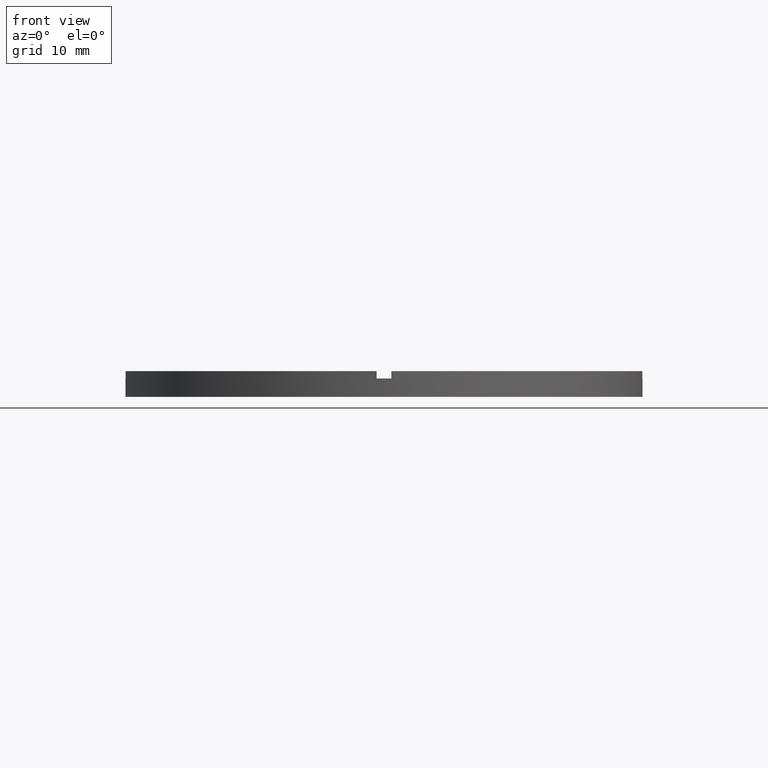
[diagram: clean part render]
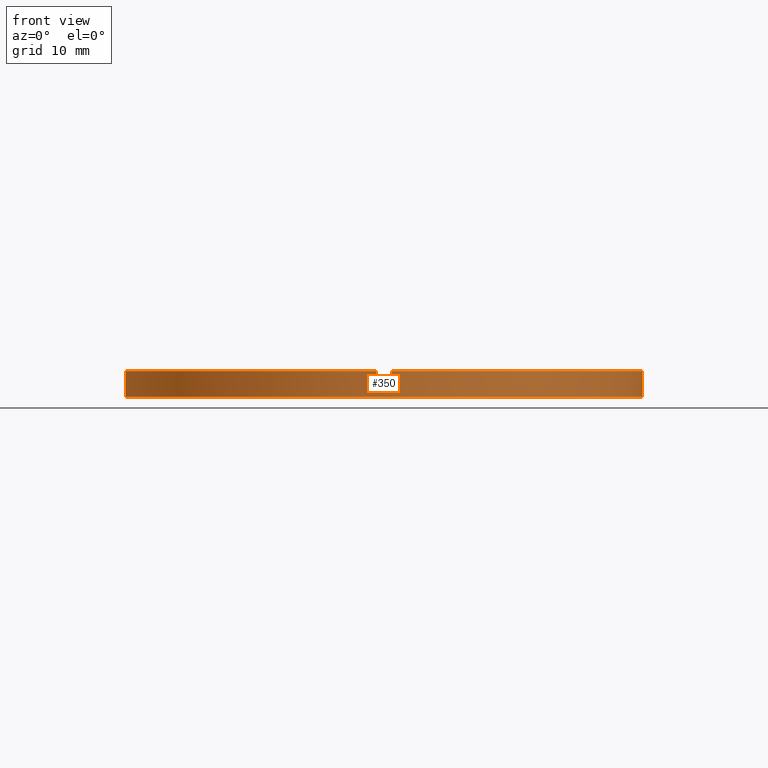
[diagram: same view with one face highlighted and labeled with its STEP entity id]
A machine part, front view. The second image highlights one B-rep face of the part: STEP entity #350.
In plain terms, the highlighted cylindrical surface (partial cylindrical patch) has radius 35 mm, axis along (-0, -0, -1).
Its self-contained STEP definition (entity closure, byte-faithful):
#10 = VERTEX_POINT ( 'NONE', #442 ) ;
#26 = CARTESIAN_POINT ( 'NONE',  ( 34.98571136907180090, -1.000000000000157874, 2.500000000000000000 ) ) ;
#34 = DIRECTION ( 'NONE',  ( 0.000000000000000000, 0.000000000000000000, 1.000000000000000000 ) ) ;
#38 = DIRECTION ( 'NONE',  ( -1.000000000000000000, 0.000000000000000000, 0.000000000000000000 ) ) ;
#39 = CIRCLE ( 'NONE', #404, 35.00000000000000711 ) ;
#53 = CARTESIAN_POINT ( 'NONE',  ( 35.00000000000000711, 4.286263797015737285E-15, 2.500000000000000000 ) ) ;
#57 = EDGE_CURVE ( 'NONE', #703, #676, #690, .T. ) ;
#58 = CARTESIAN_POINT ( 'NONE',  ( 0.000000000000000000, 0.000000000000000000, 0.000000000000000000 ) ) ;
#64 = DIRECTION ( 'NONE',  ( -0.000000000000000000, 0.000000000000000000, 1.000000000000000000 ) ) ;
#69 = DIRECTION ( 'NONE',  ( 0.000000000000000000, 0.000000000000000000, 1.000000000000000000 ) ) ;
#70 = AXIS2_PLACEMENT_3D ( 'NONE', #345, #662, #271 ) ;
#78 = ORIENTED_EDGE ( 'NONE', *, *, #386, .F. ) ;
#82 = DIRECTION ( 'NONE',  ( -0.000000000000000000, -0.000000000000000000, -1.000000000000000000 ) ) ;
#83 = ORIENTED_EDGE ( 'NONE', *, *, #680, .F. ) ;
#92 = ORIENTED_EDGE ( 'NONE', *, *, #325, .T. ) ;
#94 = CARTESIAN_POINT ( 'NONE',  ( -1.000000000000160538, -34.98571136907180090, 3.500000000000000000 ) ) ;
#102 = ORIENTED_EDGE ( 'NONE', *, *, #746, .F. ) ;
#114 = DIRECTION ( 'NONE',  ( 1.000000000000000000, 0.000000000000000000, 0.000000000000000000 ) ) ;
#119 = CARTESIAN_POINT ( 'NONE',  ( -1.000000000000160538, -34.98571136907180090, 3.500000000000000000 ) ) ;
#129 = EDGE_CURVE ( 'NONE', #10, #524, #481, .T. ) ;
#133 = DIRECTION ( 'NONE',  ( 1.000000000000000000, 0.000000000000000000, 0.000000000000000000 ) ) ;
#135 = VERTEX_POINT ( 'NONE', #154 ) ;
#151 = DIRECTION ( 'NONE',  ( -0.000000000000000000, -0.000000000000000000, -1.000000000000000000 ) ) ;
#154 = CARTESIAN_POINT ( 'NONE',  ( -34.98571136907180801, -1.000000000000026645, 3.500000000000000000 ) ) ;
#162 = VERTEX_POINT ( 'NONE', #482 ) ;
#167 = ORIENTED_EDGE ( 'NONE', *, *, #57, .F. ) ;
#171 = VECTOR ( 'NONE', #212, 1000.000000000000000 ) ;
#179 = VERTEX_POINT ( 'NONE', #53 ) ;
#186 = VECTOR ( 'NONE', #151, 1000.000000000000000 ) ;
#190 = VECTOR ( 'NONE', #572, 1000.000000000000000 ) ;
#193 = CARTESIAN_POINT ( 'NONE',  ( 0.000000000000000000, 0.000000000000000000, 2.500000000000000000 ) ) ;
#195 = EDGE_CURVE ( 'NONE', #162, #631, #243, .T. ) ;
#200 = CARTESIAN_POINT ( 'NONE',  ( -35.00000000000000711, 0.000000000000000000, 0.000000000000000000 ) ) ;
#201 = LINE ( 'NONE', #650, #186 ) ;
#212 = DIRECTION ( 'NONE',  ( 0.000000000000000000, 0.000000000000000000, 1.000000000000000000 ) ) ;
#222 = EDGE_CURVE ( 'NONE', #669, #524, #247, .T. ) ;
#233 = CARTESIAN_POINT ( 'NONE',  ( 0.000000000000000000, 0.000000000000000000, 2.500000000000000000 ) ) ;
#243 = LINE ( 'NONE', #720, #512 ) ;
#247 = LINE ( 'NONE', #651, #510 ) ;
#248 = DIRECTION ( 'NONE',  ( -0.000000000000000000, -0.000000000000000000, -1.000000000000000000 ) ) ;
#271 = DIRECTION ( 'NONE',  ( 1.000000000000000000, 0.000000000000000000, 0.000000000000000000 ) ) ;
#279 = AXIS2_PLACEMENT_3D ( 'NONE', #233, #64, #114 ) ;
#282 = VERTEX_POINT ( 'NONE', #94 ) ;
#304 = DIRECTION ( 'NONE',  ( -0.000000000000000000, -0.000000000000000000, -1.000000000000000000 ) ) ;
#306 = DIRECTION ( 'NONE',  ( 1.000000000000000000, 0.000000000000000000, 0.000000000000000000 ) ) ;
#313 = DIRECTION ( 'NONE',  ( 1.000000000000000000, 0.000000000000000000, 0.000000000000000000 ) ) ;
#317 = CARTESIAN_POINT ( 'NONE',  ( 0.9999999999998395728, -34.98571136907181511, 2.500000000000000000 ) ) ;
#325 = EDGE_CURVE ( 'NONE', #10, #676, #723, .T. ) ;
#326 = CARTESIAN_POINT ( 'NONE',  ( 34.98571136907180090, -1.000000000000157874, 3.500000000000000000 ) ) ;
#336 = DIRECTION ( 'NONE',  ( 0.000000000000000000, 0.000000000000000000, 1.000000000000000000 ) ) ;
#345 = CARTESIAN_POINT ( 'NONE',  ( 0.000000000000000000, 0.000000000000000000, 3.500000000000000000 ) ) ;
#350 = ADVANCED_FACE ( 'NONE', ( #575 ), #578, .T. ) ;
#354 = ORIENTED_EDGE ( 'NONE', *, *, #195, .T. ) ;
#362 = ORIENTED_EDGE ( 'NONE', *, *, #614, .T. ) ;
#366 = VERTEX_POINT ( 'NONE', #466 ) ;
#386 = EDGE_CURVE ( 'NONE', #162, #613, #39, .T. ) ;
#404 = AXIS2_PLACEMENT_3D ( 'NONE', #598, #69, #133 ) ;
#406 = ORIENTED_EDGE ( 'NONE', *, *, #655, .T. ) ;
#424 = ORIENTED_EDGE ( 'NONE', *, *, #129, .F. ) ;
#432 = ORIENTED_EDGE ( 'NONE', *, *, #733, .T. ) ;
#442 = CARTESIAN_POINT ( 'NONE',  ( 0.9999999999998395728, -34.98571136907181511, 3.500000000000000000 ) ) ;
#461 = LINE ( 'NONE', #517, #190 ) ;
#466 = CARTESIAN_POINT ( 'NONE',  ( 35.00000000000000711, 4.286263797015737285E-15, 0.000000000000000000 ) ) ;
#472 = CARTESIAN_POINT ( 'NONE',  ( 0.000000000000000000, 0.000000000000000000, 3.500000000000000000 ) ) ;
#475 = CARTESIAN_POINT ( 'NONE',  ( 0.9999999999998395728, -34.98571136907181511, 3.500000000000000000 ) ) ;
#481 = CIRCLE ( 'NONE', #612, 35.00000000000000711 ) ;
#482 = CARTESIAN_POINT ( 'NONE',  ( -35.00000000000000711, 0.000000000000000000, 2.500000000000000000 ) ) ;
#510 = VECTOR ( 'NONE', #336, 1000.000000000000000 ) ;
#512 = VECTOR ( 'NONE', #82, 1000.000000000000000 ) ;
#516 = AXIS2_PLACEMENT_3D ( 'NONE', #472, #304, #38 ) ;
#517 = CARTESIAN_POINT ( 'NONE',  ( -34.98571136907180801, -1.000000000000026645, 3.500000000000000000 ) ) ;
#524 = VERTEX_POINT ( 'NONE', #326 ) ;
#572 = DIRECTION ( 'NONE',  ( -0.000000000000000000, -0.000000000000000000, -1.000000000000000000 ) ) ;
#575 = FACE_OUTER_BOUND ( 'NONE', #616, .T. ) ;
#578 = CYLINDRICAL_SURFACE ( 'NONE', #516, 35.00000000000000711 ) ;
#598 = CARTESIAN_POINT ( 'NONE',  ( 0.000000000000000000, 0.000000000000000000, 2.500000000000000000 ) ) ;
#600 = AXIS2_PLACEMENT_3D ( 'NONE', #193, #34, #666 ) ;
#605 = CARTESIAN_POINT ( 'NONE',  ( 0.000000000000000000, 0.000000000000000000, 3.500000000000000000 ) ) ;
#608 = EDGE_CURVE ( 'NONE', #179, #366, #201, .T. ) ;
#609 = DIRECTION ( 'NONE',  ( 0.000000000000000000, 0.000000000000000000, 1.000000000000000000 ) ) ;
#612 = AXIS2_PLACEMENT_3D ( 'NONE', #605, #711, #313 ) ;
#613 = VERTEX_POINT ( 'NONE', #684 ) ;
#614 = EDGE_CURVE ( 'NONE', #135, #613, #461, .T. ) ;
#615 = ORIENTED_EDGE ( 'NONE', *, *, #222, .T. ) ;
#616 = EDGE_LOOP ( 'NONE', ( #620, #83, #615, #424, #92, #167, #432, #102, #362, #78, #354, #406 ) ) ;
#620 = ORIENTED_EDGE ( 'NONE', *, *, #608, .F. ) ;
#631 = VERTEX_POINT ( 'NONE', #200 ) ;
#647 = VECTOR ( 'NONE', #248, 1000.000000000000000 ) ;
#650 = CARTESIAN_POINT ( 'NONE',  ( 35.00000000000000711, 4.286263797015737285E-15, 3.500000000000000000 ) ) ;
#651 = CARTESIAN_POINT ( 'NONE',  ( 34.98571136907180090, -1.000000000000157874, 3.500000000000000000 ) ) ;
#655 = EDGE_CURVE ( 'NONE', #631, #366, #717, .T. ) ;
#661 = AXIS2_PLACEMENT_3D ( 'NONE', #58, #609, #306 ) ;
#662 = DIRECTION ( 'NONE',  ( 0.000000000000000000, 0.000000000000000000, 1.000000000000000000 ) ) ;
#666 = DIRECTION ( 'NONE',  ( 1.000000000000000000, 0.000000000000000000, 0.000000000000000000 ) ) ;
#669 = VERTEX_POINT ( 'NONE', #26 ) ;
#675 = CARTESIAN_POINT ( 'NONE',  ( -1.000000000000160538, -34.98571136907180090, 2.500000000000000000 ) ) ;
#676 = VERTEX_POINT ( 'NONE', #317 ) ;
#680 = EDGE_CURVE ( 'NONE', #669, #179, #697, .T. ) ;
#684 = CARTESIAN_POINT ( 'NONE',  ( -34.98571136907180801, -1.000000000000026645, 2.500000000000000000 ) ) ;
#690 = CIRCLE ( 'NONE', #279, 35.00000000000000711 ) ;
#697 = CIRCLE ( 'NONE', #600, 35.00000000000000711 ) ;
#703 = VERTEX_POINT ( 'NONE', #675 ) ;
#711 = DIRECTION ( 'NONE',  ( 0.000000000000000000, 0.000000000000000000, 1.000000000000000000 ) ) ;
#717 = CIRCLE ( 'NONE', #661, 35.00000000000000711 ) ;
#719 = CIRCLE ( 'NONE', #70, 35.00000000000000711 ) ;
#720 = CARTESIAN_POINT ( 'NONE',  ( -35.00000000000000711, 0.000000000000000000, 3.500000000000000000 ) ) ;
#722 = LINE ( 'NONE', #119, #171 ) ;
#723 = LINE ( 'NONE', #475, #647 ) ;
#733 = EDGE_CURVE ( 'NONE', #703, #282, #722, .T. ) ;
#746 = EDGE_CURVE ( 'NONE', #135, #282, #719, .T. ) ;